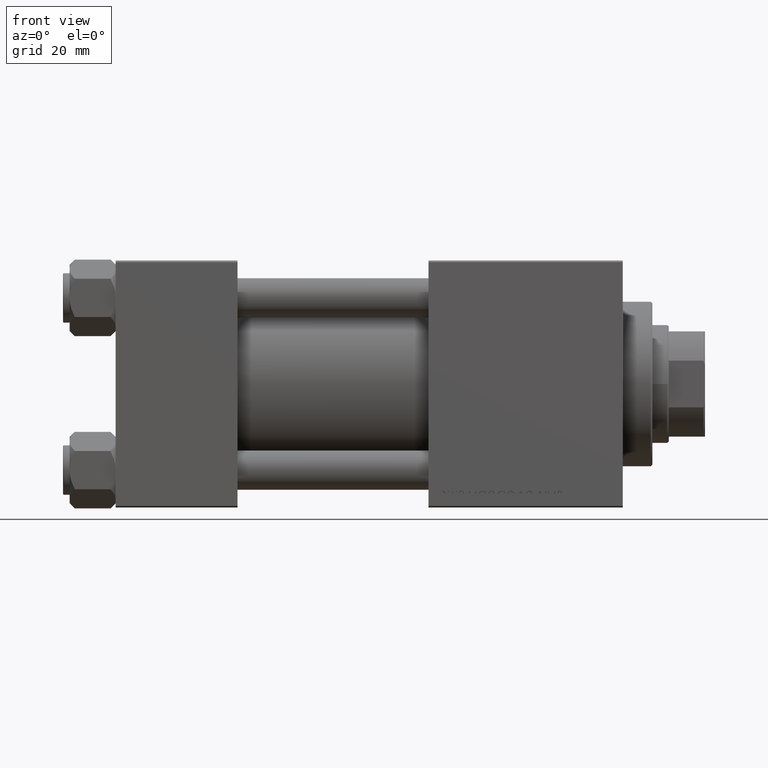
[diagram: clean part render]
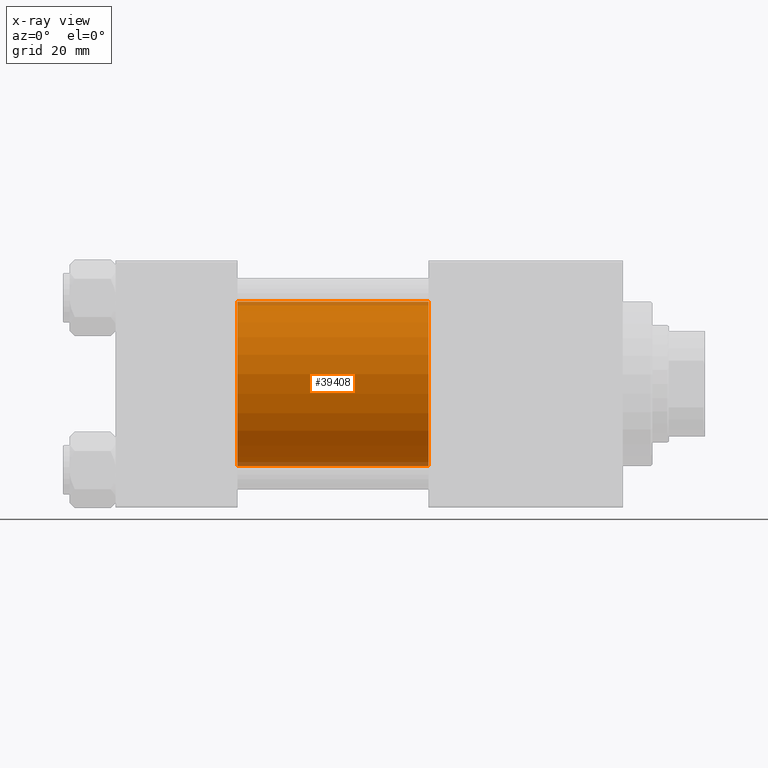
[diagram: x-ray — body ghosted, one internal face saturated and labeled with its STEP entity id]
A machine part, front view, then the same camera in x-ray: the body is ghosted and one INTERNAL B-rep face — a face not visible from any outside direction — is saturated and labeled: STEP entity #39408.
In plain terms, the highlighted cylindrical surface (partial cylindrical patch) has radius 25 mm, axis along (-1, -0, -0).
Its self-contained STEP definition (entity closure, byte-faithful):
#2400 = AXIS2_PLACEMENT_3D ( 'NONE', #4095, #20882, #5589 ) ;
#2796 = ORIENTED_EDGE ( 'NONE', *, *, #28481, .F. ) ;
#3292 = CARTESIAN_POINT ( 'NONE',  ( 95.00000000000000000, -2.602085213965210642E-15, 0.000000000000000000 ) ) ;
#4095 = CARTESIAN_POINT ( 'NONE',  ( 37.00000000000000000, -2.602085213965210642E-15, 0.000000000000000000 ) ) ;
#5413 = VECTOR ( 'NONE', #9642, 1000.000000000000000 ) ;
#5589 = DIRECTION ( 'NONE',  ( 0.000000000000000000, 0.000000000000000000, -1.000000000000000000 ) ) ;
#6544 = EDGE_LOOP ( 'NONE', ( #18093, #27167, #2796, #13163 ) ) ;
#7918 = VERTEX_POINT ( 'NONE', #16376 ) ;
#9642 = DIRECTION ( 'NONE',  ( -1.000000000000000000, -0.000000000000000000, -0.000000000000000000 ) ) ;
#13163 = ORIENTED_EDGE ( 'NONE', *, *, #21789, .F. ) ;
#14603 = VERTEX_POINT ( 'NONE', #25806 ) ;
#16376 = CARTESIAN_POINT ( 'NONE',  ( 37.00000000000000000, -2.602085213965210642E-15, 25.00000000000000000 ) ) ;
#18055 = EDGE_CURVE ( 'NONE', #28539, #18689, #30699, .T. ) ;
#18093 = ORIENTED_EDGE ( 'NONE', *, *, #18055, .T. ) ;
#18689 = VERTEX_POINT ( 'NONE', #24018 ) ;
#20131 = AXIS2_PLACEMENT_3D ( 'NONE', #32358, #47906, #28273 ) ;
#20498 = LINE ( 'NONE', #42973, #21026 ) ;
#20882 = DIRECTION ( 'NONE',  ( 1.000000000000000000, 0.000000000000000000, 0.000000000000000000 ) ) ;
#21026 = VECTOR ( 'NONE', #39885, 1000.000000000000000 ) ;
#21789 = EDGE_CURVE ( 'NONE', #28539, #7918, #20498, .T. ) ;
#22647 = DIRECTION ( 'NONE',  ( 0.000000000000000000, 0.000000000000000000, 1.000000000000000000 ) ) ;
#23133 = AXIS2_PLACEMENT_3D ( 'NONE', #3292, #39242, #22647 ) ;
#23169 = FACE_OUTER_BOUND ( 'NONE', #6544, .T. ) ;
#24018 = CARTESIAN_POINT ( 'NONE',  ( 95.00000000000000000, 4.595317839031718093E-16, -25.00000000000000000 ) ) ;
#25806 = CARTESIAN_POINT ( 'NONE',  ( 37.00000000000000000, 4.595317839031718093E-16, -25.00000000000000000 ) ) ;
#27167 = ORIENTED_EDGE ( 'NONE', *, *, #48118, .T. ) ;
#28273 = DIRECTION ( 'NONE',  ( 0.000000000000000000, 0.000000000000000000, -1.000000000000000000 ) ) ;
#28481 = EDGE_CURVE ( 'NONE', #7918, #14603, #43933, .T. ) ;
#28539 = VERTEX_POINT ( 'NONE', #48172 ) ;
#29542 = CARTESIAN_POINT ( 'NONE',  ( 95.00000000000000000, 4.595317839031718093E-16, -25.00000000000000000 ) ) ;
#30699 = CIRCLE ( 'NONE', #20131, 25.00000000000000000 ) ;
#32358 = CARTESIAN_POINT ( 'NONE',  ( 95.00000000000000000, -2.602085213965210642E-15, 0.000000000000000000 ) ) ;
#39242 = DIRECTION ( 'NONE',  ( -1.000000000000000000, -0.000000000000000000, -0.000000000000000000 ) ) ;
#39408 = ADVANCED_FACE ( 'NONE', ( #23169 ), #49706, .F. ) ;
#39885 = DIRECTION ( 'NONE',  ( -1.000000000000000000, -0.000000000000000000, -0.000000000000000000 ) ) ;
#42973 = CARTESIAN_POINT ( 'NONE',  ( 95.00000000000000000, -2.602085213965210642E-15, 25.00000000000000000 ) ) ;
#43933 = CIRCLE ( 'NONE', #2400, 25.00000000000000000 ) ;
#44596 = LINE ( 'NONE', #29542, #5413 ) ;
#47906 = DIRECTION ( 'NONE',  ( 1.000000000000000000, 0.000000000000000000, 0.000000000000000000 ) ) ;
#48118 = EDGE_CURVE ( 'NONE', #18689, #14603, #44596, .T. ) ;
#48172 = CARTESIAN_POINT ( 'NONE',  ( 95.00000000000000000, -2.602085213965210642E-15, 25.00000000000000000 ) ) ;
#49706 = CYLINDRICAL_SURFACE ( 'NONE', #23133, 25.00000000000000000 ) ;